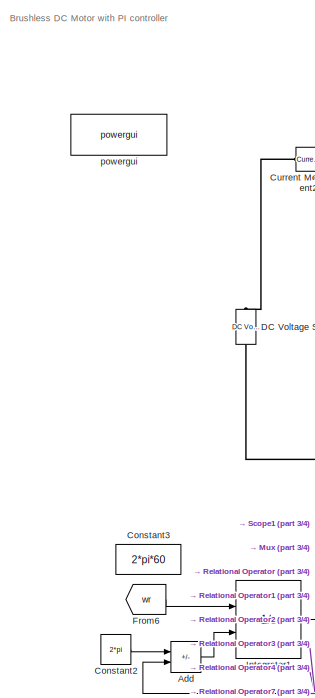
[diagram: root canvas - part 1/4, middle left region]
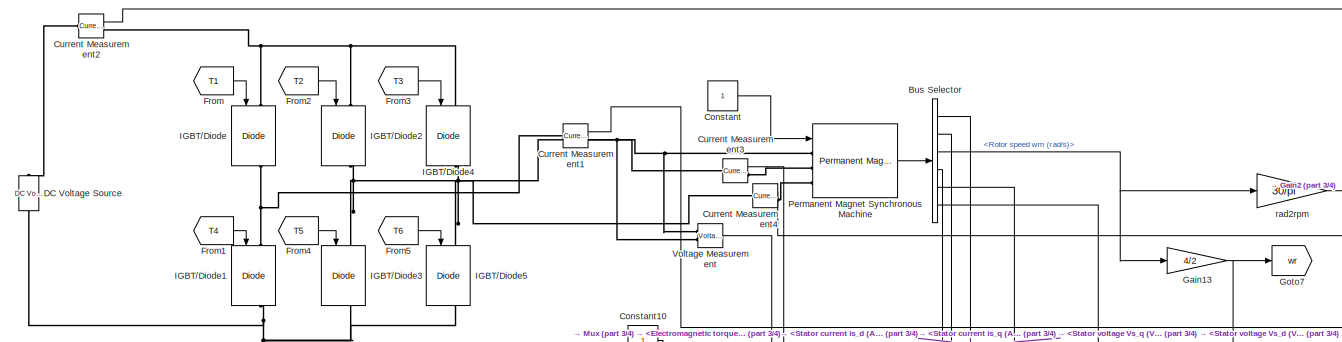
[diagram: root canvas - part 2/4, top center region]
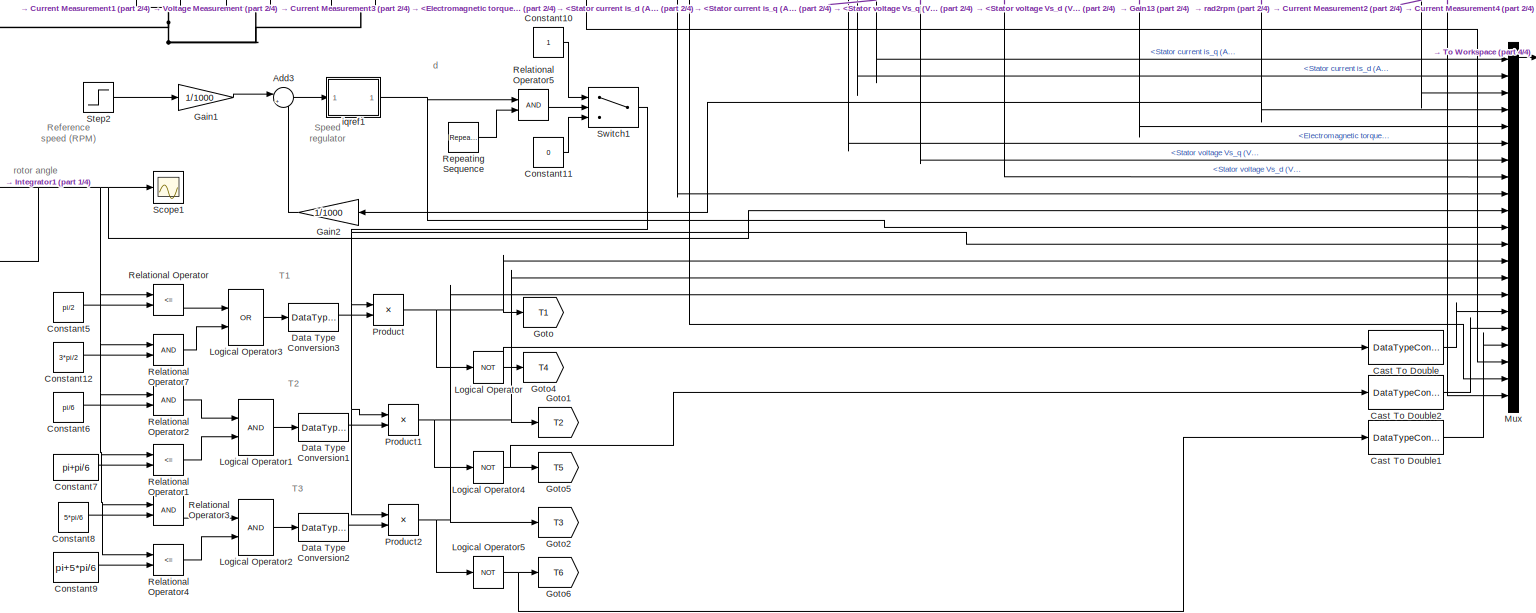
[diagram: root canvas - part 3/4, full width, bottom band]
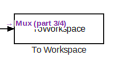
[diagram: root canvas - part 4/4, middle right region]
MODEL slx_5b0ed77337dd
KIND model
CONFIG AbsTol = 1e-6
CONFIG EnableMultiTasking = on
CONFIG FixedStep = 5e-6
CONFIG MaxStep = 1e-6
CONFIG MinStep = auto
CONFIG PreLoadFcn = assignin('base','Ts',[5e-6])
CONFIG RelTol = 1e-6
CONFIG SampleTimeConstraint = Unconstrained
CONFIG Solver = ode4
CONFIG SolverName = ode4
CONFIG StartTime = 0
CONFIG StopTime = 1
BLOCK [Sum] Add
  IconShape = rectangular
  Inputs = +-
  Ports = [2, 1]
BLOCK [Sum] Add3
  Inputs = |+-
  Ports = [2, 1]
BLOCK [BusSelector] Bus Selector
  OutputSignals = Stator current is_q (A),Stator current is_d (A),Rotor speed wm (rad/s),Electromagnetic torque Te (N*m),Stator voltage Vs_q (V),Stator voltage Vs_d (V)
  Ports = [1, 6]
BLOCK [DataTypeConversion] Cast To Double
  OutDataTypeStr = double
  RndMeth = Floor
  SaturateOnIntegerOverflow = off
BLOCK [DataTypeConversion] Cast To Double1
  OutDataTypeStr = double
  RndMeth = Floor
  SaturateOnIntegerOverflow = off
BLOCK [DataTypeConversion] Cast To Double2
  OutDataTypeStr = double
  RndMeth = Floor
  SaturateOnIntegerOverflow = off
BLOCK [Constant] Constant
BLOCK [Constant] Constant10
BLOCK [Constant] Constant11
  Value = 0
BLOCK [Constant] Constant12
  Value = 3*pi/2
BLOCK [Constant] Constant2
  Value = 2*pi
BLOCK [Constant] Constant3
  Value = 2*pi*60
BLOCK [Constant] Constant5
  Value = pi/2
BLOCK [Constant] Constant6
  Value = pi/6
BLOCK [Constant] Constant7
  Value = pi+pi/6
BLOCK [Constant] Constant8
  Value = 5*pi/6
BLOCK [Constant] Constant9
  Value = pi+5*pi/6
BLOCK [Reference] Current Measurement1  REF=powerlib/Measurements/Current Measurement
  Ports = [0, 1, 0, 0, 0, 1, 1]
  SourceBlock = powerlib/Measurements/Current Measurement
  SourceProductBaseCode = PS
  SourceType = Current Measurement
  UserDataPersistent = on
BLOCK [Reference] Current Measurement2  REF=powerlib/Measurements/Current Measurement
  Ports = [0, 1, 0, 0, 0, 1, 1]
  SourceBlock = powerlib/Measurements/Current Measurement
  SourceProductBaseCode = PS
  SourceType = Current Measurement
  UserDataPersistent = on
BLOCK [Reference] Current Measurement3  REF=powerlib/Measurements/Current Measurement
  Ports = [0, 1, 0, 0, 0, 1, 1]
  SourceBlock = powerlib/Measurements/Current Measurement
  SourceProductBaseCode = PS
  SourceType = Current Measurement
  UserDataPersistent = on
BLOCK [Reference] Current Measurement4  REF=powerlib/Measurements/Current Measurement
  Ports = [0, 1, 0, 0, 0, 1, 1]
  SourceBlock = powerlib/Measurements/Current Measurement
  SourceProductBaseCode = PS
  SourceType = Current Measurement
  UserDataPersistent = on
BLOCK [Reference] DC Voltage Source  REF=powerlib/Electrical
Sources/DC Voltage Source
  NameLocation = right
  Ports = [0, 0, 0, 0, 0, 1, 1]
  SourceBlock = powerlib/Electrical\nSources/DC Voltage Source
  SourceProductBaseCode = PS
  SourceType = DC Voltage Source
BLOCK [DataTypeConversion] Data Type Conversion1
  NameLocation = top
  OutDataTypeStr = double
BLOCK [DataTypeConversion] Data Type Conversion2
  NameLocation = top
  OutDataTypeStr = double
BLOCK [DataTypeConversion] Data Type Conversion3
  NameLocation = top
  OutDataTypeStr = double
BLOCK [From] From
  GotoTag = T1
BLOCK [From] From1
  GotoTag = T4
BLOCK [From] From2
  GotoTag = T2
BLOCK [From] From3
  GotoTag = T3
BLOCK [From] From4
  GotoTag = T5
BLOCK [From] From5
  GotoTag = T6
BLOCK [From] From6
  GotoTag = wr
BLOCK [Gain] Gain1
  Gain = 1/1000
BLOCK [Gain] Gain13
  Gain = 4/2
BLOCK [Gain] Gain2
  Gain = 1/1000
  NameLocation = top
BLOCK [Goto] Goto
  GotoTag = T1
BLOCK [Goto] Goto1
  GotoTag = T2
BLOCK [Goto] Goto2
  GotoTag = T3
BLOCK [Goto] Goto4
  GotoTag = T4
BLOCK [Goto] Goto5
  GotoTag = T5
BLOCK [Goto] Goto6
  GotoTag = T6
BLOCK [Goto] Goto7
  GotoTag = wr
BLOCK [Reference] IGBT//Diode  REF=powerlib/Power
Electronics/IGBT//Diode
  NameLocation = left
  Ports = [1, 1, 0, 0, 0, 1, 1]
  SourceBlock = powerlib/Power\nElectronics/IGBT//Diode
  SourceProductBaseCode = PS
  SourceType = IGBT/Diode
BLOCK [Reference] IGBT//Diode1  REF=powerlib/Power
Electronics/IGBT//Diode
  NameLocation = left
  Ports = [1, 1, 0, 0, 0, 1, 1]
  SourceBlock = powerlib/Power\nElectronics/IGBT//Diode
  SourceProductBaseCode = PS
  SourceType = IGBT/Diode
BLOCK [Reference] IGBT//Diode2  REF=powerlib/Power
Electronics/IGBT//Diode
  NameLocation = left
  Ports = [1, 1, 0, 0, 0, 1, 1]
  SourceBlock = powerlib/Power\nElectronics/IGBT//Diode
  SourceProductBaseCode = PS
  SourceType = IGBT/Diode
BLOCK [Reference] IGBT//Diode3  REF=powerlib/Power
Electronics/IGBT//Diode
  NameLocation = left
  Ports = [1, 1, 0, 0, 0, 1, 1]
  SourceBlock = powerlib/Power\nElectronics/IGBT//Diode
  SourceProductBaseCode = PS
  SourceType = IGBT/Diode
BLOCK [Reference] IGBT//Diode4  REF=powerlib/Power
Electronics/IGBT//Diode
  NameLocation = left
  Ports = [1, 1, 0, 0, 0, 1, 1]
  SourceBlock = powerlib/Power\nElectronics/IGBT//Diode
  SourceProductBaseCode = PS
  SourceType = IGBT/Diode
BLOCK [Reference] IGBT//Diode5  REF=powerlib/Power
Electronics/IGBT//Diode
  NameLocation = left
  Ports = [1, 1, 0, 0, 0, 1, 1]
  SourceBlock = powerlib/Power\nElectronics/IGBT//Diode
  SourceProductBaseCode = PS
  SourceType = IGBT/Diode
BLOCK [Integrator] Integrator1
  ExternalReset = falling
  Ports = [2, 1]
BLOCK [Logic] Logical Operator
  AllPortsSameDT = off
  Operator = NOT
  OutDataTypeStr = boolean
  Ports = [1, 1]
BLOCK [Logic] Logical Operator1
  AllPortsSameDT = off
  OutDataTypeStr = boolean
  Ports = [2, 1]
BLOCK [Logic] Logical Operator2
  AllPortsSameDT = off
  OutDataTypeStr = boolean
  Ports = [2, 1]
BLOCK [Logic] Logical Operator3
  AllPortsSameDT = off
  Operator = OR
  OutDataTypeStr = boolean
  Ports = [2, 1]
BLOCK [Logic] Logical Operator4
  AllPortsSameDT = off
  Operator = NOT
  OutDataTypeStr = boolean
  Ports = [1, 1]
BLOCK [Logic] Logical Operator5
  AllPortsSameDT = off
  Operator = NOT
  OutDataTypeStr = boolean
  Ports = [1, 1]
BLOCK [Mux] Mux
  DisplayOption = bar
  Inputs = 21
  Ports = [21, 1]
BLOCK [Reference] Permanent Magnet Synchronous Machine  REF=powerlib/Machines/Permanent Magnet
Synchronous Machine
  Ports = [1, 1, 0, 0, 0, 3]
  SourceBlock = powerlib/Machines/Permanent Magnet\nSynchronous Machine
  SourceProductBaseCode = PS
  SourceType = Permanent Magnet Synchronous Machine
BLOCK [Product] Product
  Ports = [2, 1]
BLOCK [Product] Product1
  Ports = [2, 1]
BLOCK [Product] Product2
  Ports = [2, 1]
BLOCK [RelationalOperator] Relational Operator
  InputSameDT = off
  Operator = <=
  OutDataTypeStr = boolean
  Ports = [2, 1]
  RndMeth = Simplest
BLOCK [RelationalOperator] Relational Operator1
  InputSameDT = off
  Operator = <=
  OutDataTypeStr = boolean
  Ports = [2, 1]
  RndMeth = Simplest
BLOCK [RelationalOperator] Relational Operator2
  InputSameDT = off
  OutDataTypeStr = boolean
  Ports = [2, 1]
  RndMeth = Simplest
BLOCK [RelationalOperator] Relational Operator3
  InputSameDT = off
  OutDataTypeStr = boolean
  Ports = [2, 1]
  RndMeth = Simplest
BLOCK [RelationalOperator] Relational Operator4
  InputSameDT = off
  Operator = <=
  OutDataTypeStr = boolean
  Ports = [2, 1]
  RndMeth = Simplest
BLOCK [RelationalOperator] Relational Operator5
  InputSameDT = off
  OutDataTypeStr = boolean
  Ports = [2, 1]
  RndMeth = Simplest
BLOCK [RelationalOperator] Relational Operator7
  InputSameDT = off
  OutDataTypeStr = boolean
  Ports = [2, 1]
  RndMeth = Simplest
BLOCK [Reference] Repeating Sequence  REF=simulink/Sources/Repeating
Sequence
  Ports = [0, 1]
  SourceBlock = simulink/Sources/Repeating\nSequence
  SourceProductBaseCode = SL
  SourceType = Repeating table
BLOCK [Scope] Scope1
  Floating = off
  NumInputPorts = 1
  Ports = [1]
  ScopeSpecificationString = Simulink.scopes.TimeScopeBlockCfg('CurrentConfiguration', extmgr.ConfigurationSet(extmgr.Configuration('Core','General UI',true),extmgr.Configuration('Core','Source UI',true),extmgr.Configuration('Sources','WiredSimulink',true,'DataLoggingVariableName','ScopeData1'),extmgr.Configuration('Visuals','Time Domain',true,'SerializedDisplays',{struct('MinYLimReal','-0.78508','MaxYLimReal','7.06576','YLab...<+1418ch>
BLOCK [Step] Step2
  After = 400
  Before = 600
  SampleTime = 0
  Time = 0.5
BLOCK [Switch] Switch1
  Criteria = u2 > Threshold
  InputSameDT = off
  SaturateOnIntegerOverflow = off
BLOCK [ToWorkspace] To Workspace
  FixptAsFi = on
  MaxDataPoints = inf
  Ports = [1]
  SampleTime = -1
  SaveFormat = Timeseries
  VariableName = simout
BLOCK [Reference] Voltage Measurement  REF=powerlib/Measurements/Voltage Measurement
  Ports = [0, 1, 0, 0, 0, 2]
  SourceBlock = powerlib/Measurements/Voltage Measurement
  SourceProductBaseCode = PS
  SourceType = Voltage Measurement
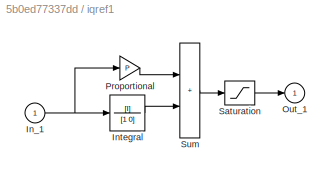
BLOCK [SubSystem] iqref1
  Ports = [1, 1]
  RequestExecContextInheritance = off
BLOCK [Inport] iqref1/In_1
BLOCK [TransferFcn] iqref1/Integral
  Denominator = [1 0]
  Numerator = [I]
BLOCK [Outport] iqref1/Out_1
  InitialOutput = 0
  VectorParamsAs1DForOutWhenUnconnected = off
BLOCK [Gain] iqref1/Proportional
  Gain = P
  NameLocation = top
  OutDataTypeStr = Inherit: Same as input
  ParamDataTypeStr = Inherit: Same as input
  SaturateOnIntegerOverflow = on
BLOCK [Saturate] iqref1/Saturation
  LowerLimit = min
  UpperLimit = max
BLOCK [Sum] iqref1/Sum
  IconShape = rectangular
  InputSameDT = on
  OutDataTypeStr = Inherit: Same as first input
  Ports = [2, 1]
  SaturateOnIntegerOverflow = on
BLOCK [Reference] powergui  REF=powerlib/powergui
  Ports = []
  Priority = 2
  SourceBlock = powerlib/powergui
  SourceProductBaseCode = PS
  SourceType = PSB option menu block
BLOCK [Gain] rad2rpm
  Gain = 30/pi
ANNOTATION (root): Brushless DC Motor with PI controller
ANNOTATION (root): Reference speed (RPM)
ANNOTATION (root): Speed regulator
ANNOTATION (root): T1
ANNOTATION (root): T2
ANNOTATION (root): T3
ANNOTATION (root): d
ANNOTATION (root): rotor angle
LINE Add3:1 -> iqref1:1
LINE Add:1 -> Integrator1:2
LINE Bus Selector:1 -> Mux:1
LINE Bus Selector:2 -> Mux:2
NET Bus Selector:3 -> Gain13:1, rad2rpm:1
LINE Bus Selector:4 -> Mux:6
LINE Bus Selector:5 -> Mux:7
LINE Bus Selector:6 -> Mux:8
LINE Cast To Double1:1 -> Mux:18
LINE Cast To Double2:1 -> Mux:17
LINE Cast To Double:1 -> Mux:16
LINE Constant10:1 -> Switch1:1
LINE Constant11:1 -> Switch1:3
LINE Constant12:1 -> Relational Operator7:2
LINE Constant2:1 -> Add:1
LINE Constant5:1 -> Relational Operator:2
LINE Constant6:1 -> Relational Operator2:2
LINE Constant7:1 -> Relational Operator1:2
LINE Constant8:1 -> Relational Operator3:2
LINE Constant9:1 -> Relational Operator4:2
LINE Constant:1 -> Permanent Magnet Synchronous Machine:1
LINE Current Measurement1:1 -> Mux:19
LINE Current Measurement2:1 -> Mux:3
LINE Current Measurement3:1 -> Mux:20
LINE Current Measurement4:1 -> Mux:21
LINE Data Type Conversion1:1 -> Product1:2
LINE Data Type Conversion2:1 -> Product2:2
LINE Data Type Conversion3:1 -> Product:2
LINE From1:1 -> IGBT//Diode1:1
LINE From2:1 -> IGBT//Diode2:1
LINE From3:1 -> IGBT//Diode4:1
LINE From4:1 -> IGBT//Diode3:1
LINE From5:1 -> IGBT//Diode5:1
LINE From6:1 -> Integrator1:1
LINE From:1 -> IGBT//Diode:1
NET Gain13:1 -> Goto7:1, Mux:5
LINE Gain1:1 -> Add3:1
LINE Gain2:1 -> Add3:2
NET Integrator1:1 -> Add:2, Mux:10, Relational Operator1:1, Relational Operator2:1, Relational Operator3:1, Relational Operator4:1, Relational Operator7:1, Relational Operator:1, Scope1:1
LINE Logical Operator1:1 -> Data Type Conversion1:1
LINE Logical Operator2:1 -> Data Type Conversion2:1
LINE Logical Operator3:1 -> Data Type Conversion3:1
NET Logical Operator4:1 -> Cast To Double2:1, Goto5:1
NET Logical Operator5:1 -> Cast To Double1:1, Goto6:1
NET Logical Operator:1 -> Cast To Double:1, Goto4:1
LINE Mux:1 -> To Workspace:1
LINE Permanent Magnet Synchronous Machine:1 -> Bus Selector:1
NET Product1:1 -> Goto1:1, Logical Operator4:1, Mux:14
NET Product2:1 -> Goto2:1, Logical Operator5:1, Mux:15
NET Product:1 -> Goto:1, Logical Operator:1, Mux:13
LINE Relational Operator1:1 -> Logical Operator1:2
LINE Relational Operator2:1 -> Logical Operator1:1
LINE Relational Operator3:1 -> Logical Operator2:1
LINE Relational Operator4:1 -> Logical Operator2:2
LINE Relational Operator5:1 -> Switch1:2
LINE Relational Operator7:1 -> Logical Operator3:2
LINE Relational Operator:1 -> Logical Operator3:1
LINE Repeating Sequence:1 -> Relational Operator5:2
LINE Step2:1 -> Gain1:1
NET Switch1:1 -> Mux:12, Product1:1, Product2:1, Product:1
LINE Voltage Measurement:1 -> Mux:9
NET iqref1/In_1:1 -> iqref1/Integral:1, iqref1/Proportional:1
LINE iqref1/Integral:1 -> iqref1/Sum:2
LINE iqref1/Proportional:1 -> iqref1/Sum:1
LINE iqref1/Saturation:1 -> iqref1/Out_1:1
LINE iqref1/Sum:1 -> iqref1/Saturation:1
NET iqref1:1 -> Mux:11, Relational Operator5:1
NET rad2rpm:1 -> Gain2:1, Mux:4
PNET net1: Current Measurement1:LConn1 -- IGBT//Diode1:LConn1 -- IGBT//Diode:RConn1
PNET net2: Current Measurement1:RConn1 -- Permanent Magnet Synchronous Machine:LConn1 -- Voltage Measurement:LConn1
PLINE Current Measurement2:LConn1 -- DC Voltage Source:RConn1
PNET net3: Current Measurement2:RConn1 -- IGBT//Diode2:LConn1 -- IGBT//Diode4:LConn1 -- IGBT//Diode:LConn1
PNET net4: Current Measurement3:LConn1 -- IGBT//Diode2:RConn1 -- IGBT//Diode3:LConn1 -- Voltage Measurement:LConn2
PLINE Current Measurement3:RConn1 -- Permanent Magnet Synchronous Machine:LConn2
PNET net5: Current Measurement4:LConn1 -- IGBT//Diode4:RConn1 -- IGBT//Diode5:LConn1
PLINE Current Measurement4:RConn1 -- Permanent Magnet Synchronous Machine:LConn3
PNET net6: DC Voltage Source:LConn1 -- IGBT//Diode1:RConn1 -- IGBT//Diode3:RConn1 -- IGBT//Diode5:RConn1
note: NET lines group one-source signal fan-out (src -> all destinations, sorted); 1:1 wires keep LINE; PNET lines group multi-terminal physical nets as a canonical sorted terminal list (undirected conserving connections); 2-terminal nets keep the pairwise PLINE form
